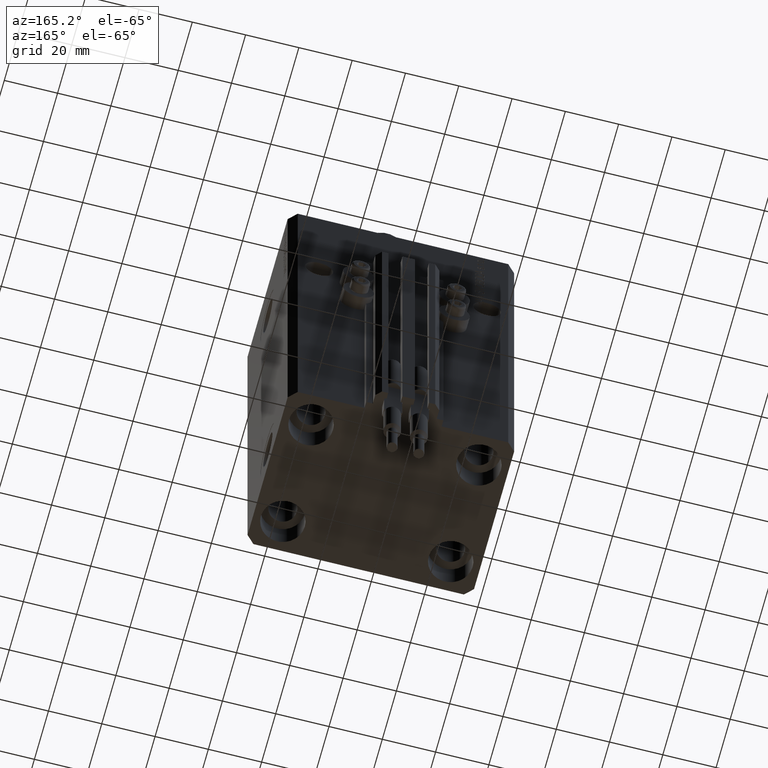
[diagram: clean part render]
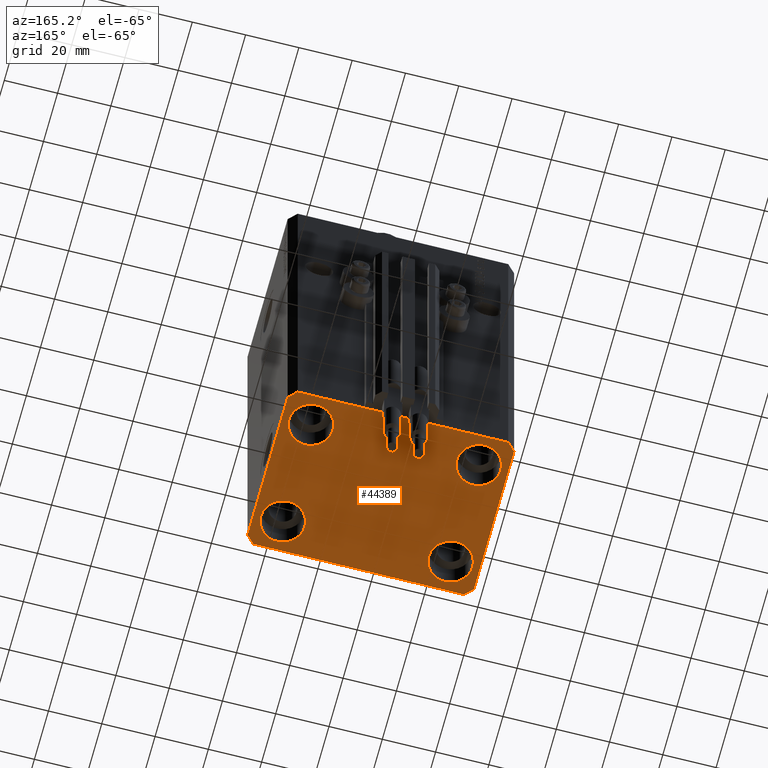
[diagram: same view with one face highlighted and labeled with its STEP entity id]
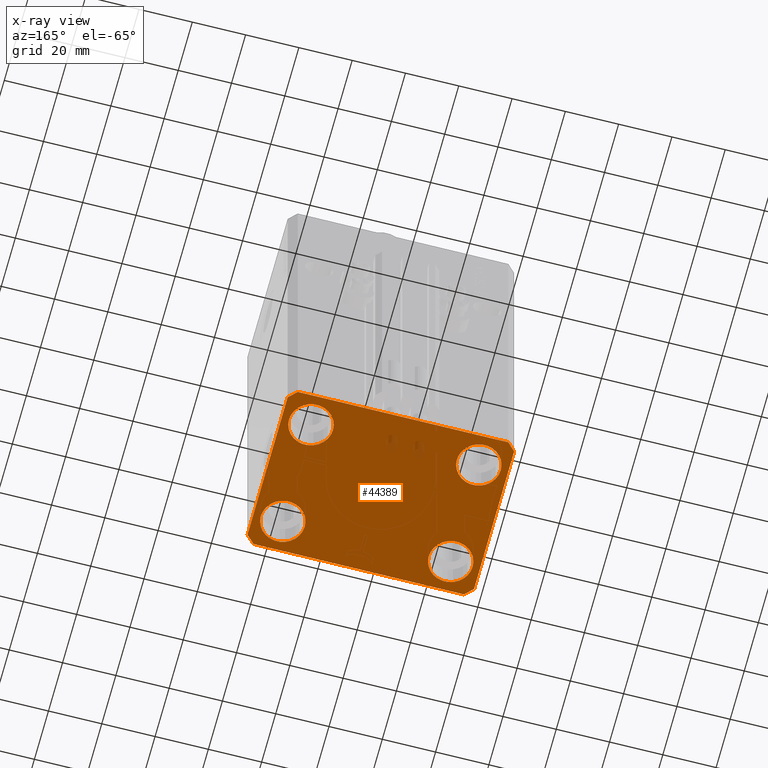
[diagram: x-ray of the same camera — body ghosted, the highlighted face saturated]
A machine part, auxiliary view. The second image highlights one B-rep face of the part: STEP entity #44389.
The next image is the same camera in x-ray: the body ghosted, the highlighted face saturated — about 1% of this face is hidden behind the body in this view.
In plain terms, the highlighted planar face has unit normal (0, 0, 1).
Its self-contained STEP definition (entity closure, byte-faithful):
#1216 = CARTESIAN_POINT ( 'NONE',  ( 39.50000000000000711, -31.50000000000000000, -153.0000000000000000 ) ) ;
#1275 = EDGE_LOOP ( 'NONE', ( #23372, #38763 ) ) ;
#1498 = CARTESIAN_POINT ( 'NONE',  ( 42.50000000000000711, -28.50000000000000355, -153.0000000000000000 ) ) ;
#1631 = ORIENTED_EDGE ( 'NONE', *, *, #10475, .T. ) ;
#2544 = VERTEX_POINT ( 'NONE', #33056 ) ;
#2826 = AXIS2_PLACEMENT_3D ( 'NONE', #8984, #43533, #47363 ) ;
#2862 = DIRECTION ( 'NONE',  ( 1.000000000000000000, 0.000000000000000000, 0.000000000000000000 ) ) ;
#2863 = AXIS2_PLACEMENT_3D ( 'NONE', #6471, #18732, #26651 ) ;
#3030 = VERTEX_POINT ( 'NONE', #40544 ) ;
#3113 = FACE_BOUND ( 'NONE', #19876, .T. ) ;
#3778 = CARTESIAN_POINT ( 'NONE',  ( 39.74999999999999289, 20.00000000000001066, -153.0000000000000000 ) ) ;
#4041 = CIRCLE ( 'NONE', #5683, 8.249999999999992895 ) ;
#4830 = EDGE_CURVE ( 'NONE', #3030, #44068, #35003, .T. ) ;
#4961 = ORIENTED_EDGE ( 'NONE', *, *, #5473, .F. ) ;
#5473 = EDGE_CURVE ( 'NONE', #44068, #19362, #42419, .T. ) ;
#5683 = AXIS2_PLACEMENT_3D ( 'NONE', #25700, #38219, #7005 ) ;
#6471 = CARTESIAN_POINT ( 'NONE',  ( -31.50000000000000000, -20.00000000000000000, -153.0000000000000000 ) ) ;
#6473 = CARTESIAN_POINT ( 'NONE',  ( -31.50000000000000000, 20.00000000000000000, -153.0000000000000000 ) ) ;
#6662 = CIRCLE ( 'NONE', #41793, 8.249999999999992895 ) ;
#6719 = FACE_BOUND ( 'NONE', #1275, .T. ) ;
#7005 = DIRECTION ( 'NONE',  ( 1.000000000000000000, 0.000000000000000000, 0.000000000000000000 ) ) ;
#7385 = CARTESIAN_POINT ( 'NONE',  ( -42.50000000000000000, 28.50000000000000000, -153.0000000000000000 ) ) ;
#7478 = PLANE ( 'NONE',  #35868 ) ;
#7948 = VERTEX_POINT ( 'NONE', #23604 ) ;
#8620 = LINE ( 'NONE', #35990, #20377 ) ;
#8984 = CARTESIAN_POINT ( 'NONE',  ( 31.50000000000000000, 20.00000000000001066, -153.0000000000000000 ) ) ;
#9148 = DIRECTION ( 'NONE',  ( -0.7071067811865356934, 0.7071067811865594521, 0.000000000000000000 ) ) ;
#9597 = DIRECTION ( 'NONE',  ( -0.000000000000000000, -0.000000000000000000, 1.000000000000000000 ) ) ;
#10475 = EDGE_CURVE ( 'NONE', #30602, #16262, #6662, .T. ) ;
#10573 = VECTOR ( 'NONE', #50601, 1000.000000000000000 ) ;
#10684 = CARTESIAN_POINT ( 'NONE',  ( 23.25000000000000355, -20.00000000000000000, -153.0000000000000000 ) ) ;
#11371 = VECTOR ( 'NONE', #11470, 1000.000000000000000 ) ;
#11464 = CARTESIAN_POINT ( 'NONE',  ( -39.50000000000000711, 31.50000000000000000, -153.0000000000000000 ) ) ;
#11470 = DIRECTION ( 'NONE',  ( 0.000000000000000000, -1.000000000000000000, 0.000000000000000000 ) ) ;
#11810 = VERTEX_POINT ( 'NONE', #32655 ) ;
#12140 = VERTEX_POINT ( 'NONE', #3778 ) ;
#12161 = AXIS2_PLACEMENT_3D ( 'NONE', #33473, #14033, #14778 ) ;
#12541 = DIRECTION ( 'NONE',  ( 1.000000000000000000, 0.000000000000000000, 0.000000000000000000 ) ) ;
#13239 = DIRECTION ( 'NONE',  ( 0.7071067811865471286, -0.7071067811865479058, 0.000000000000000000 ) ) ;
#13796 = CIRCLE ( 'NONE', #12161, 8.250000000000000000 ) ;
#14033 = DIRECTION ( 'NONE',  ( -0.000000000000000000, -0.000000000000000000, 1.000000000000000000 ) ) ;
#14192 = DIRECTION ( 'NONE',  ( 1.000000000000000000, 0.000000000000000000, 0.000000000000000000 ) ) ;
#14409 = CIRCLE ( 'NONE', #20948, 8.250000000000000000 ) ;
#14642 = FACE_BOUND ( 'NONE', #23371, .T. ) ;
#14778 = DIRECTION ( 'NONE',  ( 1.000000000000000000, 0.000000000000000000, 0.000000000000000000 ) ) ;
#15252 = AXIS2_PLACEMENT_3D ( 'NONE', #6473, #37685, #2862 ) ;
#15375 = CARTESIAN_POINT ( 'NONE',  ( 39.50000000000056843, 31.50000000000000000, -153.0000000000000000 ) ) ;
#15831 = EDGE_CURVE ( 'NONE', #17201, #3030, #38722, .T. ) ;
#16262 = VERTEX_POINT ( 'NONE', #35839 ) ;
#17201 = VERTEX_POINT ( 'NONE', #15375 ) ;
#18235 = EDGE_CURVE ( 'NONE', #22387, #40882, #44841, .T. ) ;
#18732 = DIRECTION ( 'NONE',  ( -0.000000000000000000, -0.000000000000000000, 1.000000000000000000 ) ) ;
#18992 = CARTESIAN_POINT ( 'NONE',  ( 42.50000000000051870, 28.49999999999995381, -153.0000000000000000 ) ) ;
#18993 = FACE_BOUND ( 'NONE', #42589, .T. ) ;
#19362 = VERTEX_POINT ( 'NONE', #24599 ) ;
#19822 = ORIENTED_EDGE ( 'NONE', *, *, #18235, .F. ) ;
#19876 = EDGE_LOOP ( 'NONE', ( #39696, #22230 ) ) ;
#20377 = VECTOR ( 'NONE', #47489, 1000.000000000000000 ) ;
#20948 = AXIS2_PLACEMENT_3D ( 'NONE', #25300, #47579, #12541 ) ;
#20981 = CIRCLE ( 'NONE', #15252, 8.250000000000000000 ) ;
#21487 = ORIENTED_EDGE ( 'NONE', *, *, #40947, .F. ) ;
#22229 = VECTOR ( 'NONE', #30267, 1000.000000000000000 ) ;
#22230 = ORIENTED_EDGE ( 'NONE', *, *, #25614, .T. ) ;
#22386 = EDGE_CURVE ( 'NONE', #34505, #25604, #25031, .T. ) ;
#22387 = VERTEX_POINT ( 'NONE', #26296 ) ;
#23144 = DIRECTION ( 'NONE',  ( -0.000000000000000000, -0.000000000000000000, 1.000000000000000000 ) ) ;
#23371 = EDGE_LOOP ( 'NONE', ( #1631, #50088 ) ) ;
#23372 = ORIENTED_EDGE ( 'NONE', *, *, #31536, .T. ) ;
#23465 = EDGE_CURVE ( 'NONE', #25604, #17201, #36518, .T. ) ;
#23604 = CARTESIAN_POINT ( 'NONE',  ( -23.25000000000000000, 20.00000000000000000, -153.0000000000000000 ) ) ;
#24582 = EDGE_CURVE ( 'NONE', #39983, #12140, #29785, .T. ) ;
#24599 = CARTESIAN_POINT ( 'NONE',  ( -42.50000000000000000, -28.50000000000000000, -153.0000000000000000 ) ) ;
#24862 = ORIENTED_EDGE ( 'NONE', *, *, #24582, .T. ) ;
#25031 = LINE ( 'NONE', #1498, #32993 ) ;
#25300 = CARTESIAN_POINT ( 'NONE',  ( -31.50000000000000000, 20.00000000000000000, -153.0000000000000000 ) ) ;
#25604 = VERTEX_POINT ( 'NONE', #18992 ) ;
#25614 = EDGE_CURVE ( 'NONE', #46370, #2544, #47803, .T. ) ;
#25700 = CARTESIAN_POINT ( 'NONE',  ( 31.50000000000000000, 20.00000000000001066, -153.0000000000000000 ) ) ;
#26155 = DIRECTION ( 'NONE',  ( 1.000000000000000000, 0.000000000000000000, 0.000000000000000000 ) ) ;
#26296 = CARTESIAN_POINT ( 'NONE',  ( -39.50000000000000711, -31.50000000000000000, -153.0000000000000000 ) ) ;
#26651 = DIRECTION ( 'NONE',  ( 1.000000000000000000, 0.000000000000000000, 0.000000000000000000 ) ) ;
#26984 = ORIENTED_EDGE ( 'NONE', *, *, #37918, .F. ) ;
#27384 = ORIENTED_EDGE ( 'NONE', *, *, #4830, .F. ) ;
#27892 = CARTESIAN_POINT ( 'NONE',  ( 42.50000000000000711, -28.50000000000000355, -153.0000000000000000 ) ) ;
#28202 = ORIENTED_EDGE ( 'NONE', *, *, #47097, .T. ) ;
#28315 = ORIENTED_EDGE ( 'NONE', *, *, #23465, .F. ) ;
#28330 = LINE ( 'NONE', #39867, #47936 ) ;
#28807 = CARTESIAN_POINT ( 'NONE',  ( -42.50000000000000000, 28.50000000000000000, -153.0000000000000000 ) ) ;
#29280 = CARTESIAN_POINT ( 'NONE',  ( 31.50000000000000000, -20.00000000000000000, -153.0000000000000000 ) ) ;
#29785 = CIRCLE ( 'NONE', #2826, 8.249999999999992895 ) ;
#29985 = FACE_OUTER_BOUND ( 'NONE', #30476, .T. ) ;
#30013 = EDGE_CURVE ( 'NONE', #7948, #11810, #20981, .T. ) ;
#30267 = DIRECTION ( 'NONE',  ( -1.000000000000000000, 0.000000000000000000, 0.000000000000000000 ) ) ;
#30476 = EDGE_LOOP ( 'NONE', ( #30762, #28315, #39772, #26984, #19822, #21487, #4961, #27384 ) ) ;
#30602 = VERTEX_POINT ( 'NONE', #10684 ) ;
#30762 = ORIENTED_EDGE ( 'NONE', *, *, #15831, .F. ) ;
#31536 = EDGE_CURVE ( 'NONE', #11810, #7948, #14409, .T. ) ;
#32655 = CARTESIAN_POINT ( 'NONE',  ( -39.75000000000000000, 20.00000000000000000, -153.0000000000000000 ) ) ;
#32737 = DIRECTION ( 'NONE',  ( 8.886653596232072440E-15, 1.000000000000000000, 0.000000000000000000 ) ) ;
#32993 = VECTOR ( 'NONE', #32737, 1000.000000000000000 ) ;
#33021 = VECTOR ( 'NONE', #9148, 1000.000000000000114 ) ;
#33056 = CARTESIAN_POINT ( 'NONE',  ( -39.75000000000000000, -20.00000000000000000, -153.0000000000000000 ) ) ;
#33473 = CARTESIAN_POINT ( 'NONE',  ( -31.50000000000000000, -20.00000000000000000, -153.0000000000000000 ) ) ;
#33590 = CARTESIAN_POINT ( 'NONE',  ( 0.000000000000000000, 0.000000000000000000, -153.0000000000000000 ) ) ;
#33766 = EDGE_CURVE ( 'NONE', #16262, #30602, #38194, .T. ) ;
#34505 = VERTEX_POINT ( 'NONE', #27892 ) ;
#35003 = LINE ( 'NONE', #11464, #10573 ) ;
#35839 = CARTESIAN_POINT ( 'NONE',  ( 39.74999999999999289, -20.00000000000000000, -153.0000000000000000 ) ) ;
#35868 = AXIS2_PLACEMENT_3D ( 'NONE', #33590, #49673, #45342 ) ;
#35912 = CARTESIAN_POINT ( 'NONE',  ( -23.25000000000000000, -20.00000000000000000, -153.0000000000000000 ) ) ;
#35990 = CARTESIAN_POINT ( 'NONE',  ( 39.50000000000000711, -31.50000000000000000, -153.0000000000000000 ) ) ;
#36518 = LINE ( 'NONE', #45189, #33021 ) ;
#37128 = EDGE_CURVE ( 'NONE', #2544, #46370, #13796, .T. ) ;
#37685 = DIRECTION ( 'NONE',  ( -0.000000000000000000, -0.000000000000000000, 1.000000000000000000 ) ) ;
#37918 = EDGE_CURVE ( 'NONE', #40882, #34505, #8620, .T. ) ;
#38194 = CIRCLE ( 'NONE', #39003, 8.249999999999992895 ) ;
#38219 = DIRECTION ( 'NONE',  ( -0.000000000000000000, -0.000000000000000000, 1.000000000000000000 ) ) ;
#38722 = LINE ( 'NONE', #45870, #22229 ) ;
#38763 = ORIENTED_EDGE ( 'NONE', *, *, #30013, .T. ) ;
#39003 = AXIS2_PLACEMENT_3D ( 'NONE', #46939, #23144, #50264 ) ;
#39696 = ORIENTED_EDGE ( 'NONE', *, *, #37128, .T. ) ;
#39772 = ORIENTED_EDGE ( 'NONE', *, *, #22386, .F. ) ;
#39867 = CARTESIAN_POINT ( 'NONE',  ( -42.50000000000000000, -28.50000000000000000, -153.0000000000000000 ) ) ;
#39983 = VERTEX_POINT ( 'NONE', #43166 ) ;
#40544 = CARTESIAN_POINT ( 'NONE',  ( -39.50000000000000711, 31.50000000000000000, -153.0000000000000000 ) ) ;
#40882 = VERTEX_POINT ( 'NONE', #1216 ) ;
#40947 = EDGE_CURVE ( 'NONE', #19362, #22387, #28330, .T. ) ;
#41793 = AXIS2_PLACEMENT_3D ( 'NONE', #29280, #9597, #14192 ) ;
#42419 = LINE ( 'NONE', #7385, #11371 ) ;
#42589 = EDGE_LOOP ( 'NONE', ( #24862, #28202 ) ) ;
#43166 = CARTESIAN_POINT ( 'NONE',  ( 23.25000000000000355, 20.00000000000001066, -153.0000000000000000 ) ) ;
#43533 = DIRECTION ( 'NONE',  ( -0.000000000000000000, -0.000000000000000000, 1.000000000000000000 ) ) ;
#43553 = VECTOR ( 'NONE', #26155, 1000.000000000000000 ) ;
#44068 = VERTEX_POINT ( 'NONE', #28807 ) ;
#44389 = ADVANCED_FACE ( 'NONE', ( #3113, #14642, #18993, #6719, #29985 ), #7478, .F. ) ;
#44841 = LINE ( 'NONE', #48678, #43553 ) ;
#45189 = CARTESIAN_POINT ( 'NONE',  ( 42.50000000000051870, 28.49999999999995381, -153.0000000000000000 ) ) ;
#45342 = DIRECTION ( 'NONE',  ( 1.000000000000000000, 0.000000000000000000, -0.000000000000000000 ) ) ;
#45870 = CARTESIAN_POINT ( 'NONE',  ( 39.50000000000056843, 31.50000000000000000, -153.0000000000000000 ) ) ;
#46370 = VERTEX_POINT ( 'NONE', #35912 ) ;
#46939 = CARTESIAN_POINT ( 'NONE',  ( 31.50000000000000000, -20.00000000000000000, -153.0000000000000000 ) ) ;
#47097 = EDGE_CURVE ( 'NONE', #12140, #39983, #4041, .T. ) ;
#47363 = DIRECTION ( 'NONE',  ( 1.000000000000000000, 0.000000000000000000, 0.000000000000000000 ) ) ;
#47489 = DIRECTION ( 'NONE',  ( 0.7071067811865483499, 0.7071067811865466846, 0.000000000000000000 ) ) ;
#47579 = DIRECTION ( 'NONE',  ( -0.000000000000000000, -0.000000000000000000, 1.000000000000000000 ) ) ;
#47803 = CIRCLE ( 'NONE', #2863, 8.250000000000000000 ) ;
#47936 = VECTOR ( 'NONE', #13239, 1000.000000000000000 ) ;
#48678 = CARTESIAN_POINT ( 'NONE',  ( -39.50000000000000711, -31.50000000000000000, -153.0000000000000000 ) ) ;
#49673 = DIRECTION ( 'NONE',  ( 0.000000000000000000, 0.000000000000000000, 1.000000000000000000 ) ) ;
#50088 = ORIENTED_EDGE ( 'NONE', *, *, #33766, .T. ) ;
#50264 = DIRECTION ( 'NONE',  ( 1.000000000000000000, 0.000000000000000000, 0.000000000000000000 ) ) ;
#50601 = DIRECTION ( 'NONE',  ( -0.7071067811865471286, -0.7071067811865479058, 0.000000000000000000 ) ) ;